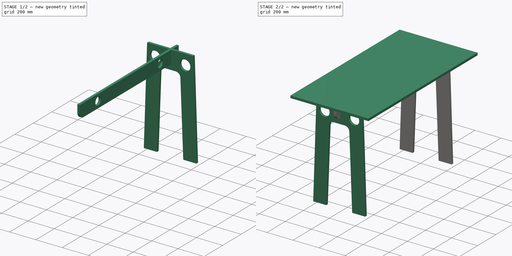
[diagram: build sequence overview — one tinted view per stage of 2, left to right]
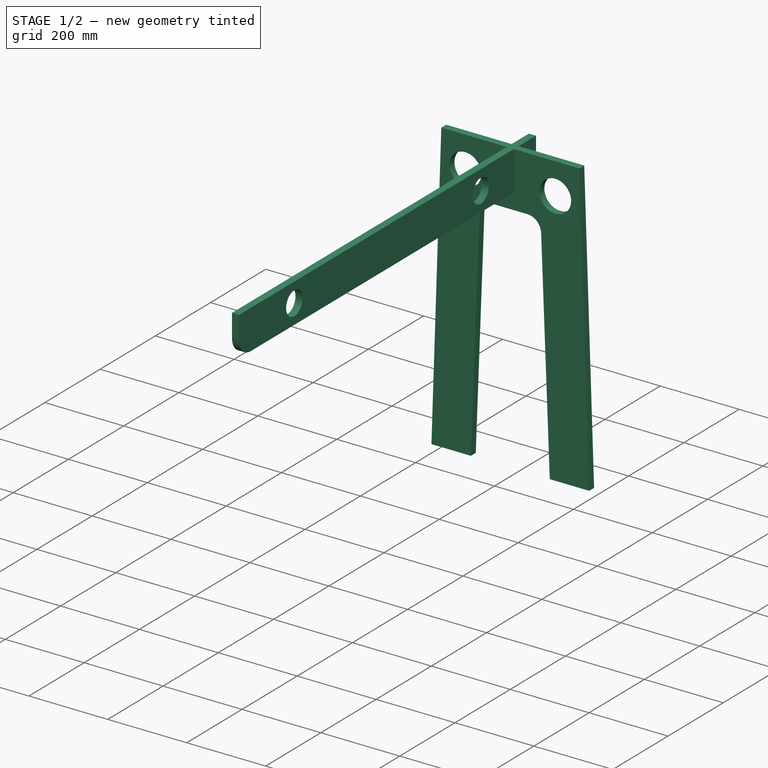
[diagram: stage 1 of 2 — iso view after this stage's code; geometry added in this stage tinted green]
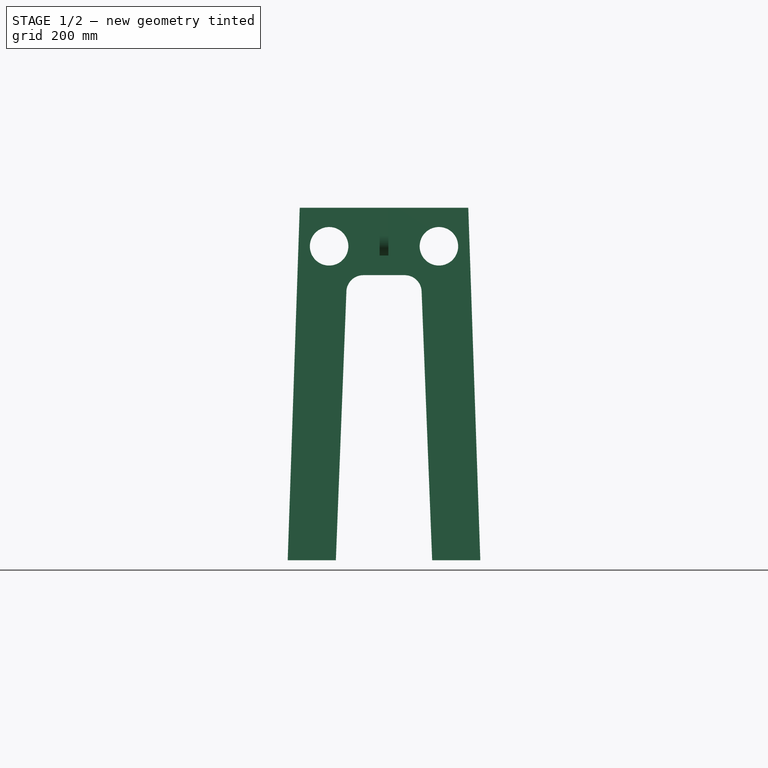
[diagram: stage 1 of 2 — front view after this stage's code; geometry added in this stage tinted green]
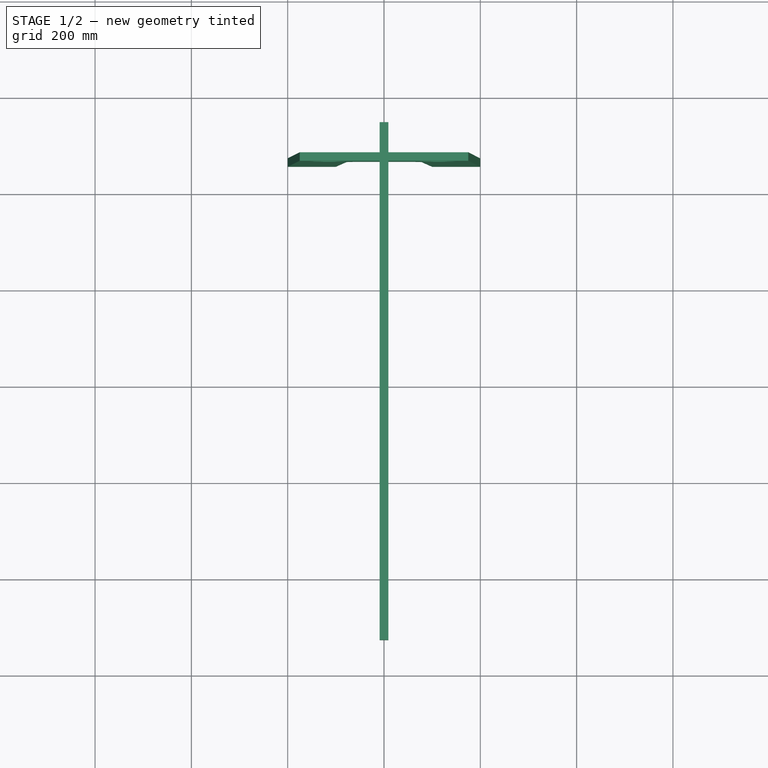
[diagram: stage 1 of 2 — top view after this stage's code; geometry added in this stage tinted green]
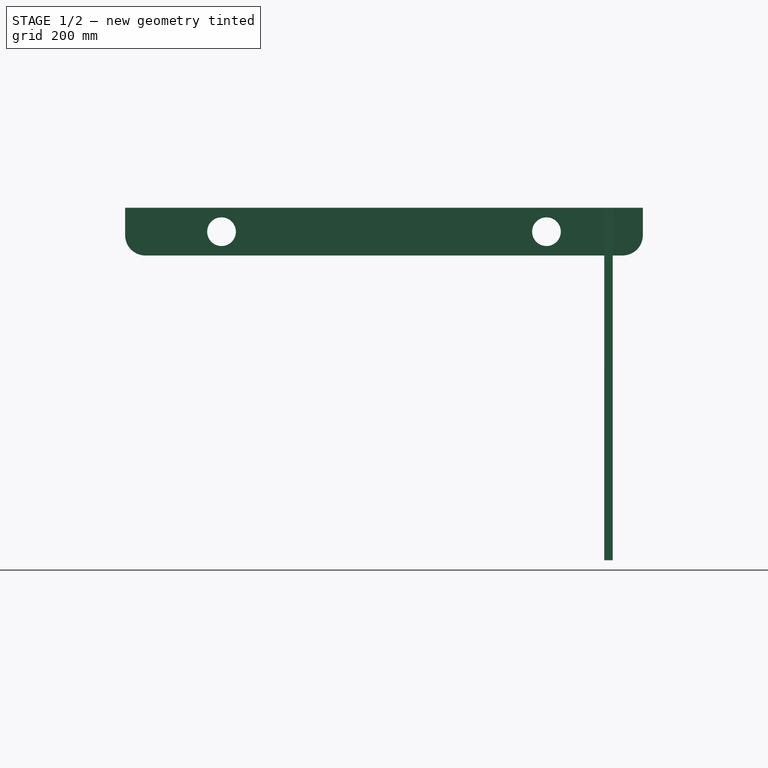
[diagram: stage 1 of 2 — right view after this stage's code; geometry added in this stage tinted green]
FCSTD DOCUMENT  (FreeCAD 0.16RUnknown)
Label: desk
License: CreativeCommons Attribution-ShareAlike
LicenseURL: http://creativecommons.org/licenses/by-sa/4.0/
objects: Sketcher::SketchObject×5, PartDesign::Pad×4, Part::Feature×2, Spreadsheet::Sheet×1, Part::Part2DObjectPython×1
note: 16 computed .brp shape members not serialized (recipe doc carries the construction recipe); baked Part::Feature solids carry a one-line shape summary decoded from their .brp

FEATURE [PartDesign::Pad] Pad003  label="Leg1"
  Length = 17.6
  Length2 = 100
  Placement = pos=(0,475,0) rot=(1,0,0;1.5708rad)
  Sketch = -> Clone2D
  Type = 0
  expr: Length = equations.pok
FEATURE [Part::Feature] topInitial_tab
  shape: bbox 600 x 1200 x 18 mm, 46 faces (baked)
FEATURE [Part::Feature] Fusion_tab
  shape: bbox 400 x 968 x 750 mm, 52 faces, 2 solids (baked)
FEATURE [PartDesign::Pad] Pad004  label="Stem"
  Length = 18
  Length2 = 100
  Midplane = true
  Placement = pos=(0,0,682) rot=(0.57735,0.57735,0.57735;2.0944rad)
  Sketch = -> Sketch005
  Type = 0
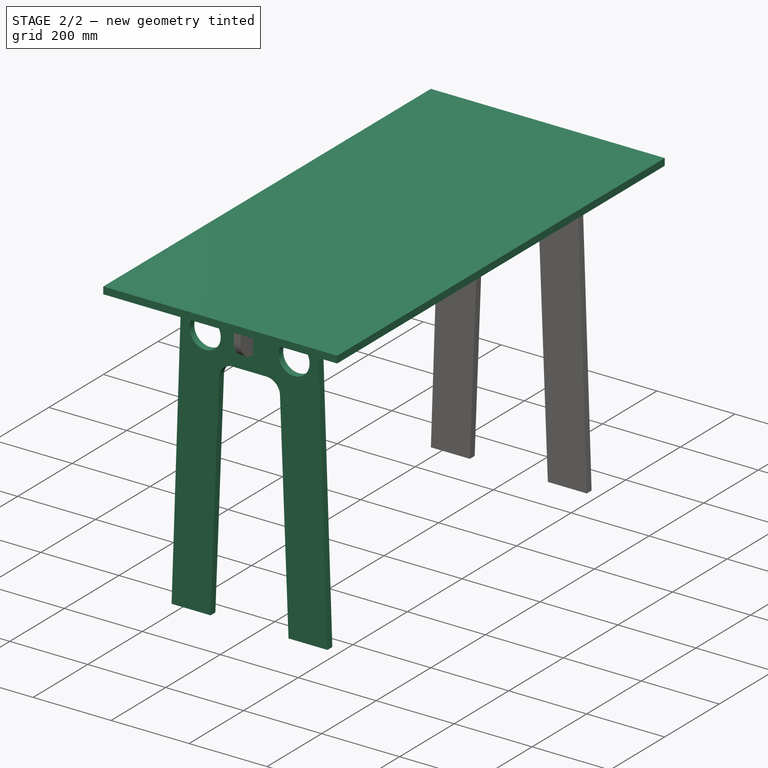
[diagram: stage 2 of 2 — iso view after this stage's code; geometry added in this stage tinted green]
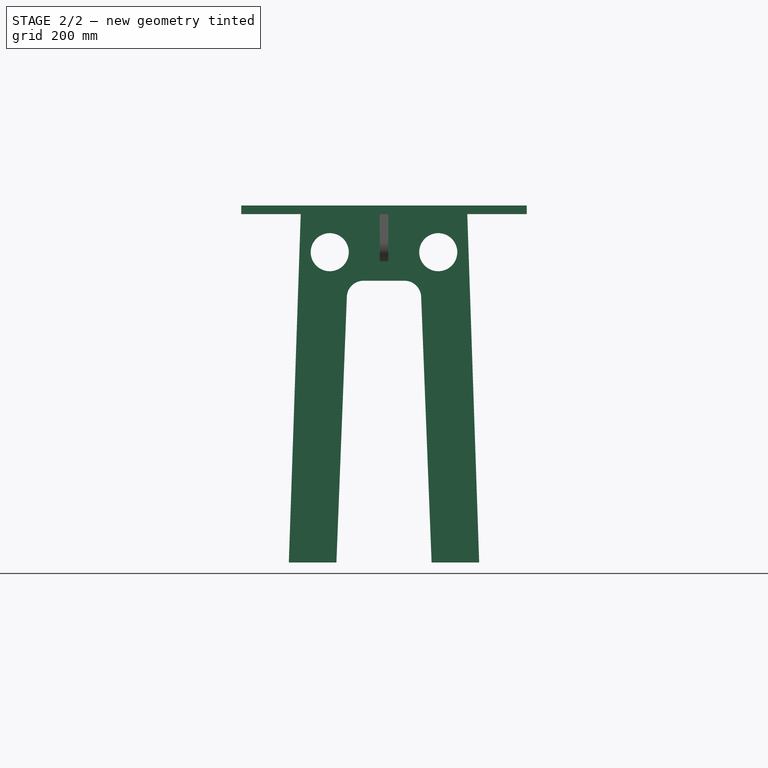
[diagram: stage 2 of 2 — front view after this stage's code; geometry added in this stage tinted green]
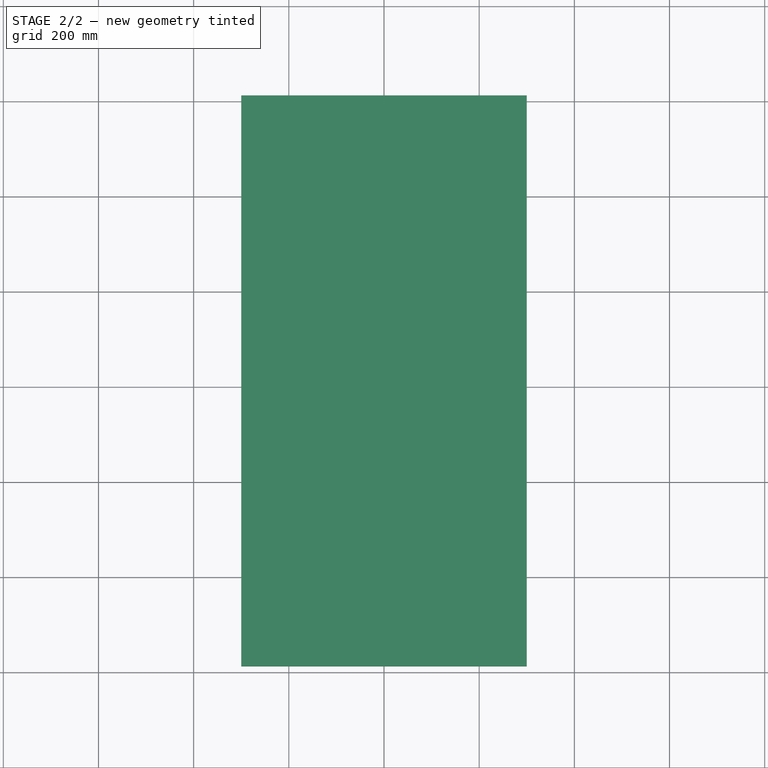
[diagram: stage 2 of 2 — top view after this stage's code; geometry added in this stage tinted green]
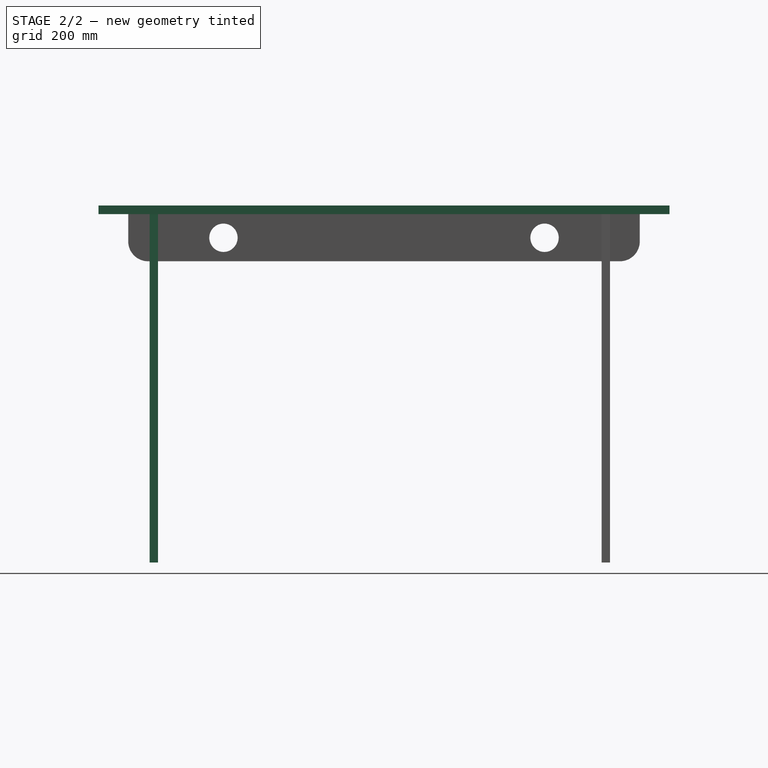
[diagram: stage 2 of 2 — right view after this stage's code; geometry added in this stage tinted green]
FEATURE [Spreadsheet::Sheet] Spreadsheet  label="equations"
  cells = A1=Desk Height ; B1=dsh; C1(dsh)=750; A2=Desk Width; B2=dsw; C2(dsw)=600; A3=Desk Length ; B3=dsl; C3(dsl)=1200; A5=Plywood Thickness; B5=plw; C5(plw)=18; A6=Pocket Thickness; B6=pok; C6(pok)==C5 - 0.4; A8=Leg Height; B8=lgh; C8(lgh)==C1 - C5; A9=Leg width; B9=lgwt; C9(lgwt)==C2 - 250; A10=Leg Width Bottom; B10=lgwb; C10(lgwb)==C2 - 200; A11=Leg distance apart; B11=lgda; C11(lgda)==C3 - 250; A13=Top Width; B13=tpw; C13(tpw)==C2; A14=Top Length; B14=tpl; C14(tpl)==C3
FEATURE [Sketcher::SketchObject] Sketch  label="leg1"
  Placement = pos=(0,0,0) rot=(1,0,0;1.5708rad)
  expr: Constraints.Constraint17 = equations.plw * 5.5
  expr: Constraints[15] = equations.lgh
  expr: Constraints.Constraint16 = equations.lgwt
  sketch-geometry (18):
    g0: LineSegment StartX=-175 StartY=732 StartZ=0 EndX=-116.403 EndY=732 EndZ=0
    g1: LineSegment StartX=175 StartY=732 StartZ=0 EndX=200 EndY=0 EndZ=0
    g2: LineSegment StartX=200 StartY=0 StartZ=0 EndX=101 EndY=0 EndZ=0
    g3: LineSegment StartX=101 StartY=0 StartZ=0 EndX=97.4033 EndY=532.929 EndZ=0
    g4: LineSegment StartX=48 StartY=582 StartZ=0 EndX=-48 EndY=582 EndZ=0
    g5: LineSegment StartX=-97.4033 StartY=532.929 StartZ=0 EndX=-101 EndY=0 EndZ=0
    g6: LineSegment StartX=-101 StartY=0 StartZ=0 EndX=-200 EndY=0 EndZ=0
    g7: LineSegment StartX=-200 StartY=0 StartZ=0 EndX=-175 EndY=732 EndZ=0
    g8: LineSegment StartX=116.399 StartY=732 StartZ=0 EndX=175 EndY=732 EndZ=0
    g9: LineSegment StartX=-46.522 StartY=732 StartZ=0 EndX=-14.3761 EndY=732 EndZ=0
    g10: LineSegment StartX=14.3761 StartY=732 StartZ=0 EndX=46.522 EndY=732 EndZ=0
    g11: ArcOfCircle CenterX=48 CenterY=532.596 CenterZ=0 NormalX=0 NormalY=0 NormalZ=1 Radius=49.4044 StartAngle=0.00674884 EndAngle=1.5708
    g12: ArcOfCircle CenterX=-48 CenterY=532.596 CenterZ=0 NormalX=0 NormalY=0 NormalZ=1 Radius=49.4044 StartAngle=1.5708 EndAngle=3.13484
    g13: Circle CenterX=-112.351 CenterY=652 CenterZ=0 NormalX=0 NormalY=0 NormalZ=1 Radius=40
    g14: Circle CenterX=112.351 CenterY=652 CenterZ=0 NormalX=0 NormalY=0 NormalZ=1 Radius=40
    g15: LineSegment StartX=46.522 StartY=732 StartZ=0 EndX=116.399 EndY=732 EndZ=0
    g16: LineSegment StartX=-116.403 StartY=732 StartZ=0 EndX=-46.522 EndY=732 EndZ=0
    g17: LineSegment StartX=-14.3761 StartY=732 StartZ=0 EndX=14.3761 EndY=732 EndZ=0
  constraints (41):
    c: Coincident(g8,g1)
    c: Coincident(g1,g2)
    c: Horizontal(g2)
    c: Coincident(g2,g3)
    c: Coincident(g5,g6)
    c: Horizontal(g6)
    c: Coincident(g6,g7)
    c: Coincident(g7,g0)
    c: Symmetric(g0,g8,g-2)
    c: Symmetric(g5,g2,g-2)
    c: Symmetric(g1,g6,g-2)
    c: PointOnObject(g1,g-1)  'onX'
    c: DistanceX(g6,g6) = 99  'Constraint17'
    c: DistanceX(g0,g8) = 350  'Constraint16'
    c: DistanceX(g6,g1) = 400  'Constraint15'
    c: DistanceY(g1,g8) = 732
    c: Tangent(g0,g8)  'Constraint39'
    c: Symmetric(g9,g10,g-2)  'Constraint29'
    c: Tangent(g3,g11) = -1.5708  'Constraint37'
    c: Tangent(g4,g11) = -1.5708  'Constraint36'
    c: Tangent(g4,g12) = -1.5708  'Constraint35'
    c: Tangent(g5,g12) = -1.5708  'Constraint32'
    c: Symmetric(g12,g11,g-2)  'Constraint30'
    c: Horizontal(g4)  'Constraint28'
    c: DistanceY(g4,g1) = 150  'Constraint27'
    c: Symmetric(g13,g14,g-2)  'Constraint26'
    c: DistanceY(g14,g8) = 80
    c: Radius(g13) = 40
    c: Equal(g13,g14)
    c: Symmetric(g10,g9,g-2)  'Constraint55'
    c: Coincident(g16,g0)
    c: Coincident(g9,g17)
    c: Horizontal(g17)
    c: Coincident(g16,g9)
    c: Coincident(g15,g10)
    c: Coincident(g8,g15)
    c: Coincident(g10,g17)
    c: Horizontal(g9)
    c: Horizontal(g16)
    c: DistanceX(g4,g4) = 96
    c: Distance(g3,g2) = 532.929
FEATURE [Sketcher::SketchObject] Sketch002
  Placement = pos=(0,0,750) rot=(0,0,1;0rad)
  expr: Constraints[9] = equations.tpl
  expr: Constraints[8] = equations.tpw
  sketch-geometry (4):
    g0: LineSegment StartX=-300 StartY=600 StartZ=0 EndX=300 EndY=600 EndZ=0
    g1: LineSegment StartX=300 StartY=600 StartZ=0 EndX=300 EndY=-600 EndZ=0
    g2: LineSegment StartX=300 StartY=-600 StartZ=0 EndX=-300 EndY=-600 EndZ=0
    g3: LineSegment StartX=-300 StartY=-600 StartZ=0 EndX=-300 EndY=600 EndZ=0
  constraints (12):
    c: Coincident(g0,g1)
    c: Coincident(g1,g2)
    c: Coincident(g2,g3)
    c: Coincident(g3,g0)
    c: Horizontal(g0)
    c: Horizontal(g2)
    c: Vertical(g1)
    c: Vertical(g3)
    c: DistanceX(g0,g0) = 600
    c: DistanceY(g3,g3) = 1200
    c: Symmetric(g0,g0,g-2)
    c: Symmetric(g0,g1,g-1)
FEATURE [PartDesign::Pad] Pad002  label="topInitial"
  Length = 18
  Length2 = 100
  Placement = pos=(0,0,750) rot=(0,0,1;0rad)
  Reversed = true
  Sketch = -> Sketch002
  Type = 0
  expr: Length = equations.plw
FEATURE [Sketcher::SketchObject] Sketch004  label="leg2"
  Placement = pos=(0,950,0) rot=(1,0,0;1.5708rad)
  expr: Constraints[15] = equations.lgh
  expr: Constraints.Constraint17 = equations.plw * 5.5
  expr: Constraints.Constraint16 = equations.lgwt
  sketch-geometry (18):
    g0: LineSegment StartX=-175 StartY=732 StartZ=0 EndX=-116.396 EndY=732 EndZ=0
    g1: LineSegment StartX=175 StartY=732 StartZ=0 EndX=200 EndY=0 EndZ=0
    g2: LineSegment StartX=200 StartY=0 StartZ=0 EndX=101 EndY=0 EndZ=0
    g3: LineSegment StartX=101 StartY=0 StartZ=0 EndX=97.4029 EndY=532.929 EndZ=0
    g4: LineSegment StartX=48 StartY=582 StartZ=0 EndX=-48 EndY=582 EndZ=0
    g5: LineSegment StartX=-97.4029 StartY=532.929 StartZ=0 EndX=-101 EndY=0 EndZ=0
    g6: LineSegment StartX=-101 StartY=0 StartZ=0 EndX=-200 EndY=0 EndZ=0
    g7: LineSegment StartX=-200 StartY=0 StartZ=0 EndX=-175 EndY=732 EndZ=0
    g8: LineSegment StartX=116.396 StartY=732 StartZ=0 EndX=175 EndY=732 EndZ=0
    g9: LineSegment StartX=-46.4004 StartY=732 StartZ=0 EndX=-8.77455 EndY=732 EndZ=0
    g10: LineSegment StartX=8.77455 StartY=732 StartZ=0 EndX=46.4004 EndY=732 EndZ=0
    g11: ArcOfCircle CenterX=48 CenterY=532.596 CenterZ=0 NormalX=0 NormalY=0 NormalZ=1 Radius=49.404 StartAngle=0.00674964 EndAngle=1.5708
    g12: ArcOfCircle CenterX=-48 CenterY=532.596 CenterZ=0 NormalX=0 NormalY=0 NormalZ=1 Radius=49.404 StartAngle=1.5708 EndAngle=3.13484
    g13: Circle CenterX=-112.351 CenterY=652 CenterZ=0 NormalX=0 NormalY=0 NormalZ=1 Radius=40
    g14: Circle CenterX=112.351 CenterY=652 CenterZ=0 NormalX=0 NormalY=0 NormalZ=1 Radius=40
    g15: LineSegment StartX=-116.396 StartY=732 StartZ=0 EndX=-46.4004 EndY=732 EndZ=0
    g16: LineSegment StartX=46.4004 StartY=732 StartZ=0 EndX=116.396 EndY=732 EndZ=0
    g17: LineSegment StartX=-8.77455 StartY=732 StartZ=0 EndX=8.77455 EndY=732 EndZ=0
  constraints (41):
    c: Coincident(g8,g1)
    c: Coincident(g1,g2)
    c: Horizontal(g2)
    c: Coincident(g2,g3)
    c: Coincident(g5,g6)
    c: Horizontal(g6)
    c: Coincident(g6,g7)
    c: Coincident(g7,g0)
    c: Symmetric(g0,g8,g-2)
    c: Symmetric(g5,g2,g-2)
    c: Symmetric(g1,g6,g-2)
    c: PointOnObject(g1,g-1)  'onX'
    c: DistanceX(g6,g6) = 99  'Constraint17'
    c: DistanceX(g0,g8) = 350  'Constraint16'
    c: DistanceX(g6,g1) = 400  'Constraint15'
    c: DistanceY(g1,g8) = 732
    c: Tangent(g0,g8)  'Constraint39'
    c: Tangent(g0,g9)  'Constraint31'
    c: Symmetric(g9,g10,g-2)  'Constraint30'
    c: Tangent(g9,g10)  'Constraint41'
    c: Tangent(g3,g11) = -1.5708  'Constraint38'
    c: Tangent(g4,g11) = -1.5708  'Constraint37'
    c: Tangent(g4,g12) = -1.5708  'Constraint35'
    c: Tangent(g5,g12) = -1.5708  'Constraint28'
    c: Symmetric(g12,g11,g-2)  'Constraint27'
    c: Horizontal(g4)  'Constraint34'
    c: DistanceY(g4,g1) = 150
    c: Symmetric(g13,g14,g-2)
    c: DistanceY(g14,g8) = 80
    c: Radius(g13) = 40
    c: Equal(g13,g14)
    c: Symmetric(g10,g9,g-2)  'Constraint55'
    c: Coincident(g0,g15)
    c: Coincident(g15,g9)
    c: Horizontal(g15)
    c: Coincident(g10,g16)
    c: Coincident(g16,g8)
    c: Horizontal(g16)
    c: Coincident(g9,g17)
    c: Coincident(g17,g10)
    c: DistanceX(g4,g4) = 96
FEATURE [Sketcher::SketchObject] Sketch005
  Placement = pos=(0,0,682) rot=(0.57735,0.57735,0.57735;2.0944rad)
  expr: Constraints[7] = equations.tpl - 125
  sketch-geometry (8):
    g0: LineSegment StartX=-537.5 StartY=50 StartZ=0 EndX=537.5 EndY=50 EndZ=0
    g1: LineSegment StartX=537.5 StartY=50 StartZ=0 EndX=537.5 EndY=-7.24359 EndZ=0
    g2: LineSegment StartX=495.641 StartY=-49.1028 StartZ=0 EndX=-495.641 EndY=-49.1028 EndZ=0
    g3: LineSegment StartX=-537.5 StartY=-7.24359 StartZ=0 EndX=-537.5 EndY=50 EndZ=0
    g4: ArcOfCircle CenterX=495.641 CenterY=-7.24359 CenterZ=0 NormalX=0 NormalY=0 NormalZ=1 Radius=41.8592 StartAngle=4.71239 EndAngle=6.28319
    g5: ArcOfCircle CenterX=-495.641 CenterY=-7.24359 CenterZ=0 NormalX=0 NormalY=0 NormalZ=1 Radius=41.8592 StartAngle=3.14159 EndAngle=4.71239
    g6: Circle CenterX=-337.404 CenterY=0.291226 CenterZ=0 NormalX=0 NormalY=0 NormalZ=1 Radius=29.7862
    g7: Circle CenterX=337.404 CenterY=0.291226 CenterZ=0 NormalX=0 NormalY=0 NormalZ=1 Radius=29.7862
  constraints (13):
    c: Coincident(g0,g1)
    c: Coincident(g3,g0)
    c: Horizontal(g0)
    c: Horizontal(g2)
    c: Vertical(g1)
    c: Vertical(g3)
    c: Symmetric(g0,g0,g-2)
    c: DistanceX(g0,g0) = 1075
    c: Tangent(g1,g4) = 1.5708
    c: Tangent(g2,g4) = 1.5708
    c: Tangent(g2,g5) = 1.5708
    c: Tangent(g3,g5) = 1.5708
    c: Symmetric(g5,g4,g-2)
FEATURE [Sketcher::SketchObject] Sketch007
  Placement = pos=(0,-475,0) rot=(1,0,0;1.5708rad)
  expr: Constraints[17] = equations.lgh
  expr: Constraints[16] = equations.lgwt
  sketch-geometry (12):
    g0: LineSegment StartX=-100 StartY=0 StartZ=0 EndX=-200 EndY=0 EndZ=0
    g1: LineSegment StartX=-200 StartY=0 StartZ=0 EndX=-175 EndY=732 EndZ=0
    g2: LineSegment StartX=-175 StartY=732 StartZ=0 EndX=175 EndY=732 EndZ=0
    g3: LineSegment StartX=175 StartY=732 StartZ=0 EndX=200 EndY=0 EndZ=0
    g4: LineSegment StartX=200 StartY=0 StartZ=0 EndX=100 EndY=0 EndZ=0
    g5: LineSegment StartX=100 StartY=0 StartZ=0 EndX=78.0813 EndY=558.358 EndZ=0
    g6: LineSegment StartX=43.1082 StartY=591.985 StartZ=0 EndX=-43.1082 EndY=591.985 EndZ=0
    g7: LineSegment StartX=-78.0813 StartY=558.358 StartZ=0 EndX=-100 EndY=0 EndZ=0
    g8: ArcOfCircle CenterX=43.1082 CenterY=556.985 CenterZ=0 NormalX=0 NormalY=0 NormalZ=1 Radius=35 StartAngle=0.0392355 EndAngle=1.5708
    g9: ArcOfCircle CenterX=-43.1082 CenterY=556.985 CenterZ=0 NormalX=0 NormalY=0 NormalZ=1 Radius=35 StartAngle=1.5708 EndAngle=3.10236
    g10: Circle CenterX=-114.005 CenterY=651.985 CenterZ=0 NormalX=0 NormalY=0 NormalZ=1 Radius=40
    g11: Circle CenterX=114.005 CenterY=651.985 CenterZ=0 NormalX=0 NormalY=0 NormalZ=1 Radius=40
  constraints (30):
    c: Horizontal(g0)
    c: Coincident(g0,g1)
    c: Coincident(g1,g2)
    c: Horizontal(g2)
    c: Coincident(g2,g3)
    c: Coincident(g3,g4)
    c: Coincident(g4,g5)
    c: Horizontal(g6)
    c: Coincident(g7,g0)
    c: Horizontal(g4)
    c: PointOnObject(g3,g-1)
    c: PointOnObject(g0,g-1)
    c: Symmetric(g2,g1,g-2)
    c: Symmetric(g4,g0,g-2)
    c: Symmetric(g3,g0,g-2)
    c: DistanceX(g0,g3) = 400
    c: DistanceX(g1,g2) = 350
    c: Distance(g2,g4) = 732
    c: DistanceX(g0,g0) = 100
    c: Tangent(g5,g8) = -1.5708
    c: Tangent(g6,g8) = -1.5708
    c: Tangent(g6,g9) = -1.5708
    c: Tangent(g7,g9) = -1.5708
    c: Equal(g8,g9)
    c: Radius(g9) = 35
    c: Symmetric(g8,g9,g-2)
    c: Equal(g11,g10)
    c: Radius(g10) = 40
    c: Distance(g10,g6) = 60
    c: Distance(g11,g6) = 60
FEATURE [Part::Part2DObjectPython] Clone2D  label="Clone of Sketch007 (2D)"  # Draft 2D object (typed FeaturePython)
  Objects = -> [Sketch007]
  Placement = pos=(0,475,0) rot=(1,0,0;1.5708rad)
  Scale = (1,1,1)
FEATURE [PartDesign::Pad] Pad  label="Leg2"
  Length = 17.6
  Length2 = 100
  Placement = pos=(0,-475,0) rot=(1,0,0;1.5708rad)
  Sketch = -> Sketch007
  Type = 0
  expr: Length = equations.pok
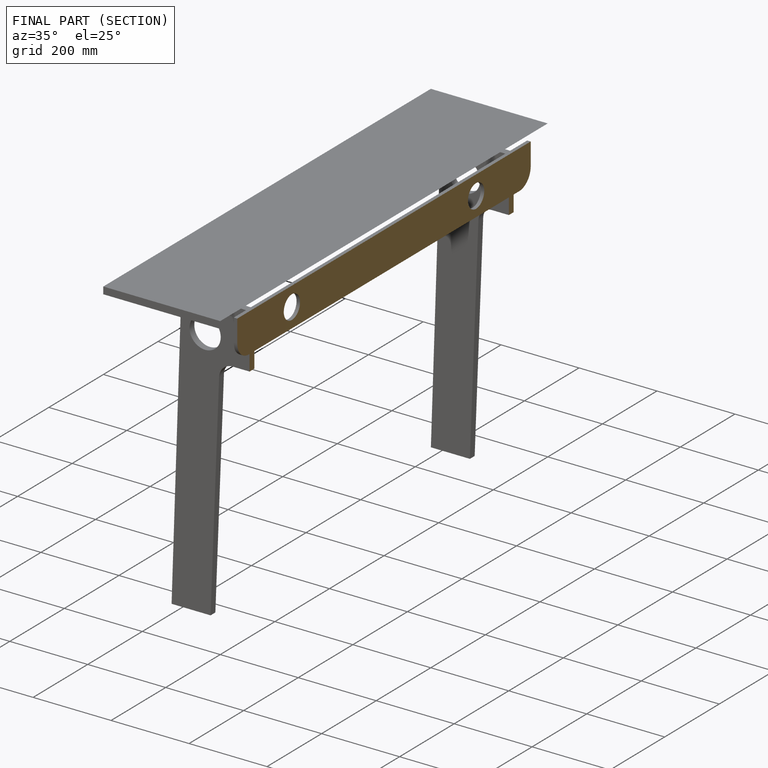
[diagram: finished part — half-section view (interior)]
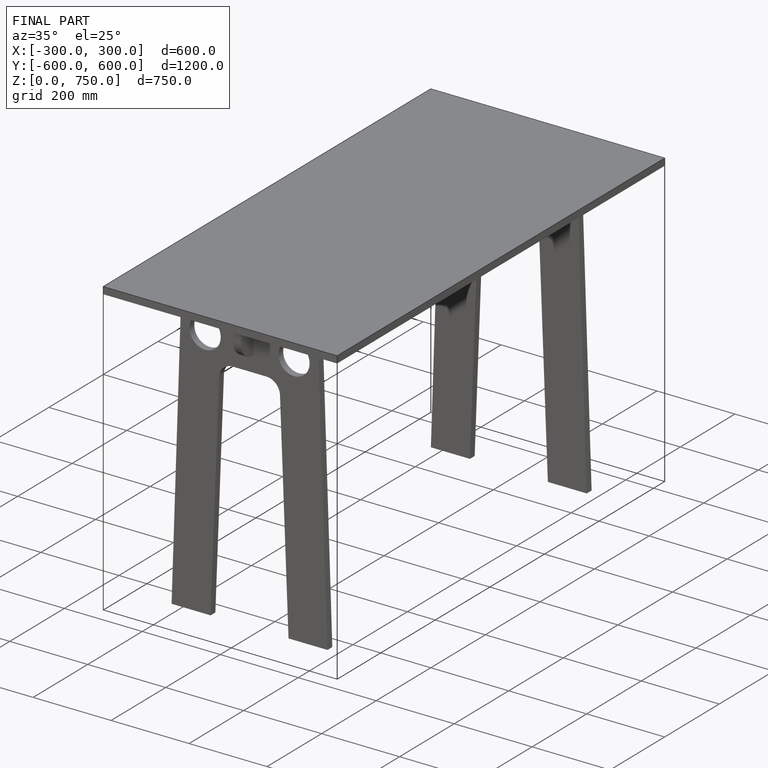
[diagram: finished part — iso view with bounding-box wireframe]
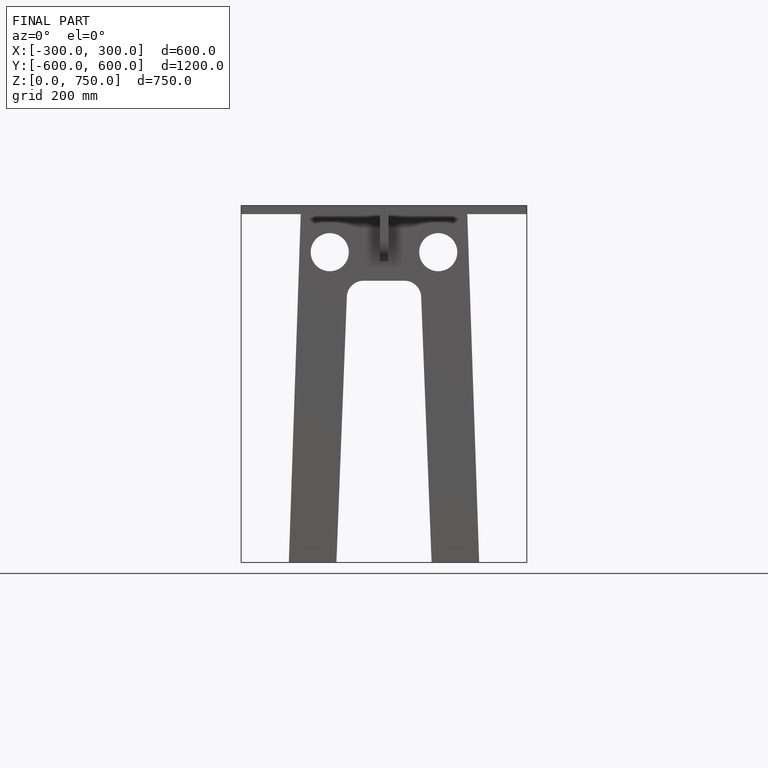
[diagram: finished part — front view with bounding-box wireframe]
